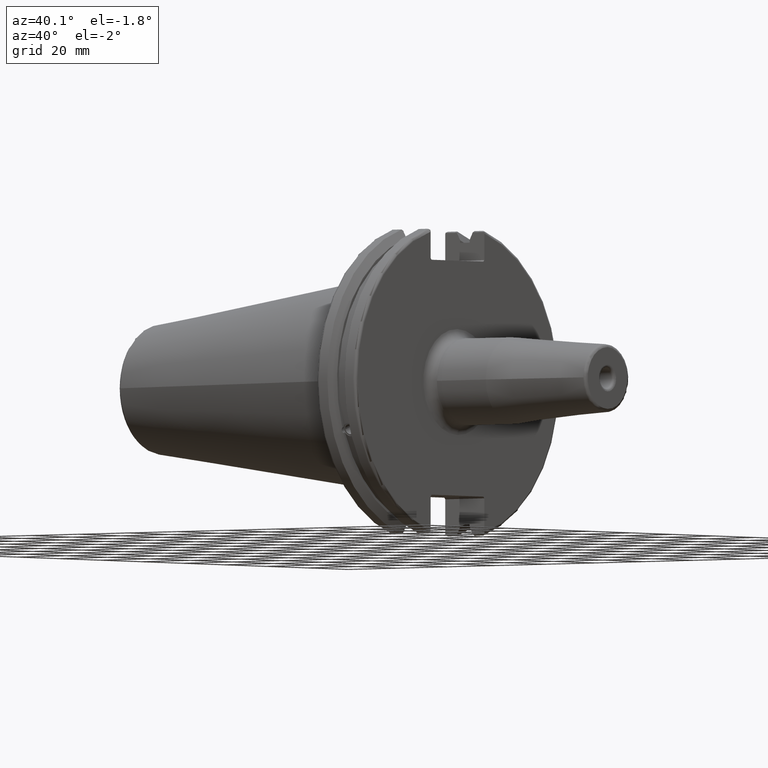
[diagram: clean part render]
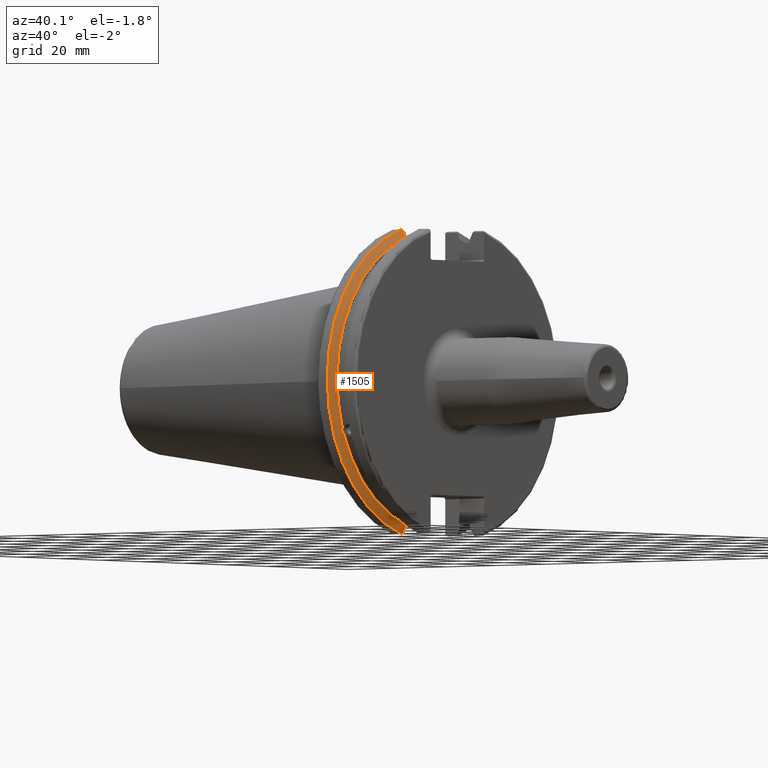
[diagram: same view with one face highlighted and labeled with its STEP entity id]
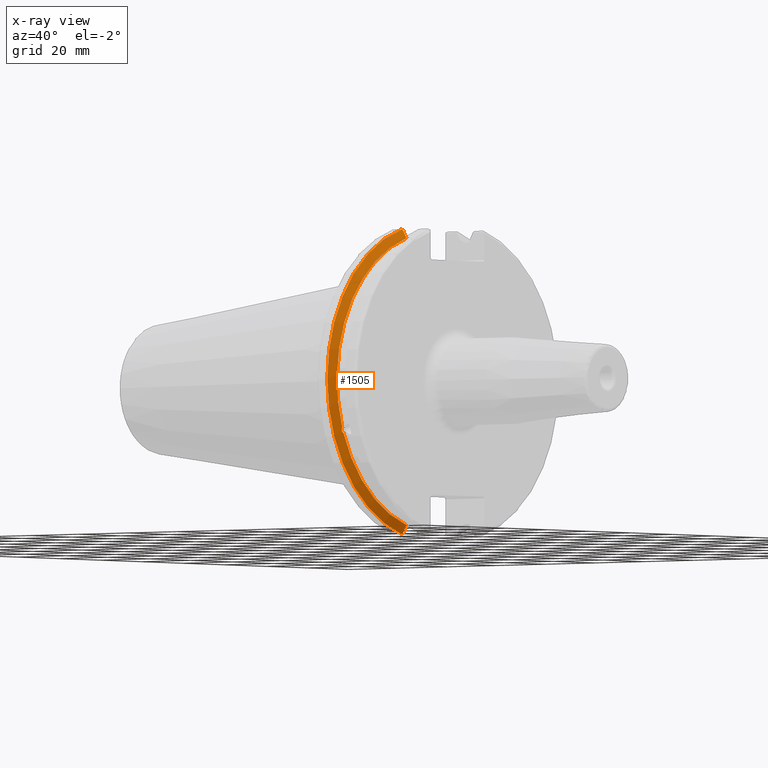
[diagram: x-ray of the same camera — body ghosted, the highlighted face saturated]
A machine part, auxiliary view. The second image highlights one B-rep face of the part: STEP entity #1505.
The next image is the same camera in x-ray: the body ghosted, the highlighted face saturated — about 0% of this face is hidden behind the body in this view.
In plain terms, the highlighted conical surface has half-angle 60 deg.
Its self-contained STEP definition (entity closure, byte-faithful):
#25=(
BOUNDED_CURVE()
B_SPLINE_CURVE(2,(#2853,#2854,#2855),.UNSPECIFIED.,.F.,.F.)
B_SPLINE_CURVE_WITH_KNOTS((3,3),(0.,0.275823910674601),.UNSPECIFIED.)
CURVE()
GEOMETRIC_REPRESENTATION_ITEM()
RATIONAL_B_SPLINE_CURVE((1.,1.00038235573593,1.00012873636487))
REPRESENTATION_ITEM('')
);
#26=(
BOUNDED_CURVE()
B_SPLINE_CURVE(2,(#2865,#2866,#2867),.UNSPECIFIED.,.F.,.F.)
B_SPLINE_CURVE_WITH_KNOTS((3,3),(0.0558332664507492,0.331657177124507),
 .UNSPECIFIED.)
CURVE()
GEOMETRIC_REPRESENTATION_ITEM()
RATIONAL_B_SPLINE_CURVE((1.00012873636807,1.00038235574544,1.))
REPRESENTATION_ITEM('')
);
#27=(
BOUNDED_CURVE()
B_SPLINE_CURVE(2,(#2900,#2901,#2902),.UNSPECIFIED.,.F.,.F.)
B_SPLINE_CURVE_WITH_KNOTS((3,3),(0.,0.0648240472897372),.UNSPECIFIED.)
CURVE()
GEOMETRIC_REPRESENTATION_ITEM()
RATIONAL_B_SPLINE_CURVE((1.,1.00011477674836,1.00019140645948))
REPRESENTATION_ITEM('')
);
#28=(
BOUNDED_CURVE()
B_SPLINE_CURVE(2,(#2908,#2909,#2910),.UNSPECIFIED.,.F.,.F.)
B_SPLINE_CURVE_WITH_KNOTS((3,3),(0.325260944932348,0.390084992222201),
 .UNSPECIFIED.)
CURVE()
GEOMETRIC_REPRESENTATION_ITEM()
RATIONAL_B_SPLINE_CURVE((1.00019140645916,1.00011477674817,1.))
REPRESENTATION_ITEM('')
);
#43=B_SPLINE_CURVE_WITH_KNOTS('',3,(#2397,#2398,#2399,#2400,#2401,#2402,
#2403,#2404,#2405,#2406,#2407,#2408,#2409,#2410),.UNSPECIFIED.,.F.,.F.,
(4,2,2,2,2,2,4),(0.426712868358719,0.441644498666906,0.48031331322313,0.518982127779354,
0.557650942335578,0.596319756891801,0.611251387199988),.UNSPECIFIED.);
#82=CONICAL_SURFACE('',#1685,47.8172386482472,1.0471975511966);
#426=FACE_OUTER_BOUND('',#530,.T.);
#530=EDGE_LOOP('',(#1396,#1397,#1398,#1399,#1400,#1401,#1402,#1403));
#567=CIRCLE('',#1592,46.4219772964944);
#589=CIRCLE('',#1639,49.2125);
#605=CIRCLE('',#1686,46.4219772964944);
#652=VERTEX_POINT('',#2394);
#653=VERTEX_POINT('',#2396);
#670=VERTEX_POINT('',#2487);
#728=VERTEX_POINT('',#2850);
#729=VERTEX_POINT('',#2852);
#732=VERTEX_POINT('',#2864);
#736=VERTEX_POINT('',#2898);
#737=VERTEX_POINT('',#2904);
#813=EDGE_CURVE('',#653,#652,#43,.T.);
#836=EDGE_CURVE('',#653,#670,#567,.T.);
#914=EDGE_CURVE('',#729,#728,#25,.T.);
#920=EDGE_CURVE('',#732,#670,#26,.T.);
#928=EDGE_CURVE('',#736,#728,#27,.T.);
#930=EDGE_CURVE('',#736,#737,#589,.T.);
#931=EDGE_CURVE('',#732,#737,#28,.T.);
#973=EDGE_CURVE('',#729,#652,#605,.T.);
#1396=ORIENTED_EDGE('',*,*,#813,.T.);
#1397=ORIENTED_EDGE('',*,*,#973,.F.);
#1398=ORIENTED_EDGE('',*,*,#914,.T.);
#1399=ORIENTED_EDGE('',*,*,#928,.F.);
#1400=ORIENTED_EDGE('',*,*,#930,.T.);
#1401=ORIENTED_EDGE('',*,*,#931,.F.);
#1402=ORIENTED_EDGE('',*,*,#920,.T.);
#1403=ORIENTED_EDGE('',*,*,#836,.F.);
#1505=ADVANCED_FACE('',(#426),#82,.T.);
#1592=AXIS2_PLACEMENT_3D('',#2488,#1843,#1844);
#1639=AXIS2_PLACEMENT_3D('',#2906,#1977,#1978);
#1685=AXIS2_PLACEMENT_3D('',#3022,#2090,#2091);
#1686=AXIS2_PLACEMENT_3D('',#3023,#2092,#2093);
#1843=DIRECTION('center_axis',(1.,0.,0.));
#1844=DIRECTION('ref_axis',(0.,0.,-1.));
#1977=DIRECTION('center_axis',(1.,0.,0.));
#1978=DIRECTION('ref_axis',(0.,0.,-1.));
#2090=DIRECTION('center_axis',(-1.,0.,0.));
#2091=DIRECTION('ref_axis',(0.,-1.,-1.22464679914735E-16));
#2092=DIRECTION('center_axis',(1.,0.,0.));
#2093=DIRECTION('ref_axis',(0.,0.,-1.));
#2394=CARTESIAN_POINT('',(9.2191,-43.9096390749305,-15.0646464421033));
#2396=CARTESIAN_POINT('',(9.2191,-43.3201030900029,-16.684383248648));
#2397=CARTESIAN_POINT('Ctrl Pts',(9.21910000000001,-43.3201030900029,-16.6843832486479));
#2398=CARTESIAN_POINT('Ctrl Pts',(9.20211843903392,-43.3613106941341,-16.6592273018006));
#2399=CARTESIAN_POINT('Ctrl Pts',(9.18608675403322,-43.4012416983557,-16.6326763251437));
#2400=CARTESIAN_POINT('Ctrl Pts',(9.13238673845037,-43.5391037343221,-16.5325130832406));
#2401=CARTESIAN_POINT('Ctrl Pts',(9.09621610663556,-43.6406982153491,-16.441180795372));
#2402=CARTESIAN_POINT('Ctrl Pts',(9.04690868251975,-43.8110833825827,-16.2291323464527));
#2403=CARTESIAN_POINT('Ctrl Pts',(9.0341,-43.8794096049168,-16.10796730316));
#2404=CARTESIAN_POINT('Ctrl Pts',(9.0341,-43.9675796948952,-15.8657219718732));
#2405=CARTESIAN_POINT('Ctrl Pts',(9.04690868251975,-43.9931221605126,-15.7289849146254));
#2406=CARTESIAN_POINT('Ctrl Pts',(9.09621610663556,-43.9989016655819,-15.4570249042867));
#2407=CARTESIAN_POINT('Ctrl Pts',(9.13238673845037,-43.9797830409458,-15.3217566390708));
#2408=CARTESIAN_POINT('Ctrl Pts',(9.18608675403322,-43.9385582852181,-15.1564111356409));
#2409=CARTESIAN_POINT('Ctrl Pts',(9.20211843903392,-43.9250360001461,-15.1104047527575));
#2410=CARTESIAN_POINT('Ctrl Pts',(9.2191,-43.9096390749305,-15.0646464421033));
#2487=CARTESIAN_POINT('',(9.2191,-12.95,-44.5791147973604));
#2488=CARTESIAN_POINT('Origin',(9.2191,0.,0.));
#2850=CARTESIAN_POINT('',(7.88638960562424,-12.95,46.9780755322918));
#2852=CARTESIAN_POINT('',(9.2191,-12.95,44.5791147973604));
#2853=CARTESIAN_POINT('Ctrl Pts',(9.2191,-12.95,44.5791147973604));
#2854=CARTESIAN_POINT('Ctrl Pts',(8.57020449055857,-12.95,45.7494966802148));
#2855=CARTESIAN_POINT('Ctrl Pts',(7.88638960562424,-12.95,46.9780755322918));
#2864=CARTESIAN_POINT('',(7.88638960562425,-12.95,-46.9780755322918));
#2865=CARTESIAN_POINT('Ctrl Pts',(7.88638960562425,-12.95,-46.9780755322918));
#2866=CARTESIAN_POINT('Ctrl Pts',(8.57020449054166,-12.95,-45.7494966802452));
#2867=CARTESIAN_POINT('Ctrl Pts',(9.2191,-12.95,-44.5791147973604));
#2898=CARTESIAN_POINT('',(7.60799096595127,-13.4317035994433,47.3440544806494));
#2900=CARTESIAN_POINT('Ctrl Pts',(7.60799096595126,-13.4317035994433,47.3440544806494));
#2901=CARTESIAN_POINT('Ctrl Pts',(7.7482689666382,-13.1896660169966,47.1601640966265));
#2902=CARTESIAN_POINT('Ctrl Pts',(7.88638960562424,-12.95,46.9780755322918));
#2904=CARTESIAN_POINT('',(7.60799096595127,-13.4317035994433,-47.3440544806494));
#2906=CARTESIAN_POINT('Origin',(7.60799096595127,0.,0.));
#2908=CARTESIAN_POINT('Ctrl Pts',(7.88638960562425,-12.95,-46.9780755322918));
#2909=CARTESIAN_POINT('Ctrl Pts',(7.74826896663813,-13.1896660169967,-47.1601640966265));
#2910=CARTESIAN_POINT('Ctrl Pts',(7.60799096595127,-13.4317035994434,-47.3440544806494));
#3022=CARTESIAN_POINT('Origin',(8.41354548297563,0.,0.));
#3023=CARTESIAN_POINT('Origin',(9.2191,0.,0.));